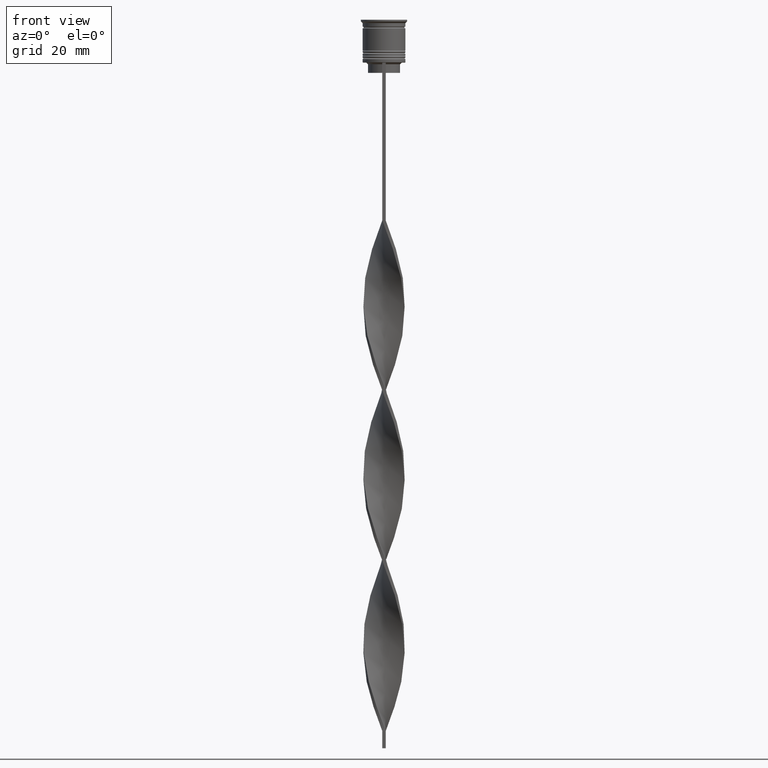
[diagram: clean part render]
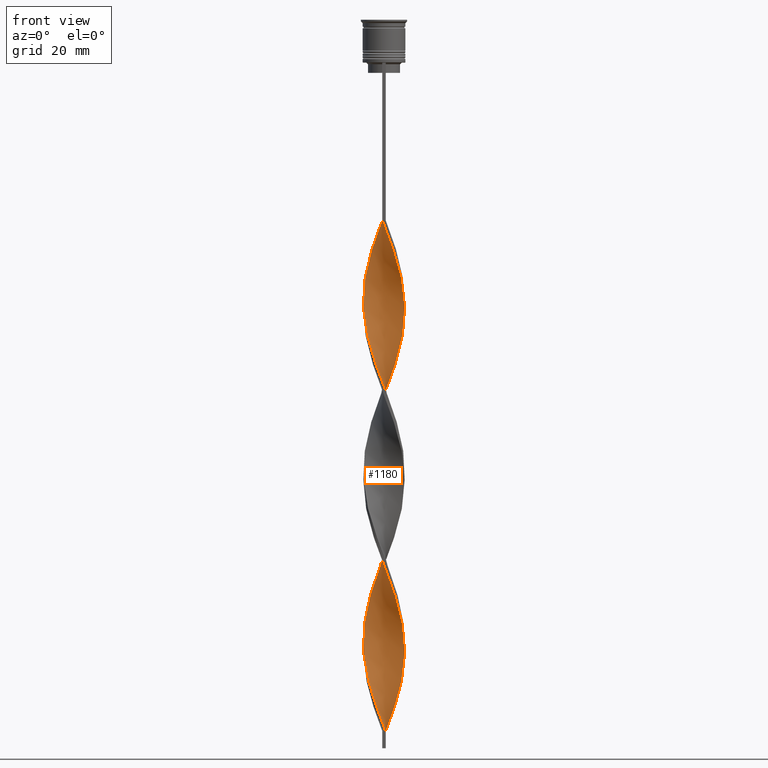
[diagram: same view with one face highlighted and labeled with its STEP entity id]
A machine part, front view. The second image highlights one B-rep face of the part: STEP entity #1180.
In plain terms, the highlighted face is a freeform B-spline surface patch.
Its self-contained STEP definition (entity closure, byte-faithful):
#4 = CARTESIAN_POINT ( 'NONE',  ( 5.928270878038556901, 1.051477244927326415, -134.4607843137254974 ) ) ;
#14 = CARTESIAN_POINT ( 'NONE',  ( -5.437407565418680200, -2.644969083640991592, -89.17647058823528994 ) ) ;
#18 = CARTESIAN_POINT ( 'NONE',  ( -3.583701545128944232, -4.838086732939006041, -149.0686274509803866 ) ) ;
#23 = CARTESIAN_POINT ( 'NONE',  ( -2.236388528178717472, -5.617813528137046930, -200.1960784313725981 ) ) ;
#40 = CARTESIAN_POINT ( 'NONE',  ( 5.437407565418680200, -2.644969083640992480, -77.49019607843136725 ) ) ;
#47 = CARTESIAN_POINT ( 'NONE',  ( -5.387501025401044252, 2.745194926993649087, -173.9019607843137294 ) ) ;
#55 = CARTESIAN_POINT ( 'NONE',  ( -0.05598187745217925865, 6.046331823121014359, -109.6274509803921546 ) ) ;
#61 = CARTESIAN_POINT ( 'NONE',  ( -3.672669403269014143, 4.770901325147232974, -119.8529411764705799 ) ) ;
#66 = CARTESIAN_POINT ( 'NONE',  ( -1.701213882420740120, -5.775454209519710780, -201.6568627450980387 ) ) ;
#72 = CARTESIAN_POINT ( 'NONE',  ( 0.5000000000000005551, 6.000000000000000000, -108.1666666666666572 ) ) ;
#75 = CARTESIAN_POINT ( 'NONE',  ( -5.089420681871065000, 3.216799204635419240, -73.10784313725488914 ) ) ;
#82 = CARTESIAN_POINT ( 'NONE',  ( -5.928270878038556013, -1.051477244927328192, -184.1274509803921546 ) ) ;
#86 = CARTESIAN_POINT ( 'NONE',  ( -1.701213882420741008, 5.775454209519710780, -114.0098039215686185 ) ) ;
#92 = CARTESIAN_POINT ( 'NONE',  ( 1.593983656741372767, 5.805963839195126042, -204.5784313725490335 ) ) ;
#97 = CARTESIAN_POINT ( 'NONE',  ( -5.830837162583067723, -1.600812440396821801, -185.5882352941176237 ) ) ;
#105 = CARTESIAN_POINT ( 'NONE',  ( 4.791340338341087524, 3.688403482277190282, -95.01960784313725128 ) ) ;
#109 = CARTESIAN_POINT ( 'NONE',  ( 5.148110570242104167, 3.122011780336761966, -140.3039215686274588 ) ) ;
#128 = CARTESIAN_POINT ( 'NONE',  ( 6.015373881509670895, -0.6136281867224248066, -130.0784313725490335 ) ) ;
#135 = CARTESIAN_POINT ( 'NONE',  ( 0.5000000000000005551, 6.000000000000000000, -207.5000000000000000 ) ) ;
#141 = CARTESIAN_POINT ( 'NONE',  ( 4.858813575065529911, -3.599054477032529675, -173.9019607843137294 ) ) ;
#145 = CARTESIAN_POINT ( 'NONE',  ( -5.907785354072955464, 1.161065118846087207, -178.2843137254901933 ) ) ;
#156 = CARTESIAN_POINT ( 'NONE',  ( 4.411678320489673233, 4.097205681500676100, -195.8137254901960773 ) ) ;
#163 = CARTESIAN_POINT ( 'NONE',  ( -5.437407565418680200, -2.644969083640991592, -188.5098039215686185 ) ) ;
#175 = CARTESIAN_POINT ( 'NONE',  ( -5.830837162583068611, 1.600812440396819580, -130.0784313725490335 ) ) ;
#178 = CARTESIAN_POINT ( 'NONE',  ( -5.634122364000872629, -2.122890762018907029, -187.0490196078431211 ) ) ;
#189 = CARTESIAN_POINT ( 'NONE',  ( 0.5000000000000005551, 6.000000000000000000, -207.5000000000000000 ) ) ;
#192 = CARTESIAN_POINT ( 'NONE',  ( -1.055981877452178086, 5.953668176878986529, -59.96078431372549744 ) ) ;
#205 = CARTESIAN_POINT ( 'NONE',  ( 2.733484409399328019, -5.364518895816363653, -67.26470588235292780 ) ) ;
#209 = CARTESIAN_POINT ( 'NONE',  ( -4.411678320489672345, 4.097205681500676988, -70.18627450980390847 ) ) ;
#233 = CARTESIAN_POINT ( 'NONE',  ( 0.05598187745217871047, 6.046331823121016136, -156.3725490196078454 ) ) ;
#253 = CARTESIAN_POINT ( 'NONE',  ( -0.6110105570574716483, -5.989713357011694939, -105.2450980392156765 ) ) ;
#266 = CARTESIAN_POINT ( 'NONE',  ( -5.089420681871066776, -3.216799204635417464, -143.2254901960784537 ) ) ;
#270 = CARTESIAN_POINT ( 'NONE',  ( -3.135386787619624638, 5.170165585153851495, -65.80392156862747299 ) ) ;
#288 = CARTESIAN_POINT ( 'NONE',  ( 6.015373881509670895, 0.6136281867224271380, -86.25490196078432348 ) ) ;
#294 = CARTESIAN_POINT ( 'NONE',  ( -2.633686111825095377, 5.414212543332558525, -64.34313725490196134 ) ) ;
#308 = CARTESIAN_POINT ( 'NONE',  ( 6.025704593494046968, -0.5021420494578373583, -83.33333333333332860 ) ) ;
#312 = CARTESIAN_POINT ( 'NONE',  ( -6.025704593494046968, -0.5021420494578366922, -182.6666666666666572 ) ) ;
#321 = CARTESIAN_POINT ( 'NONE',  ( -3.672669403269015032, -4.770901325147232086, -96.48039215686274872 ) ) ;
#324 = CARTESIAN_POINT ( 'NONE',  ( -4.411678320489671457, -4.097205681500676988, -146.1470588235294201 ) ) ;
#330 = CARTESIAN_POINT ( 'NONE',  ( -5.089420681871065000, 3.216799204635419240, -172.4411764705882035 ) ) ;
#337 = CARTESIAN_POINT ( 'NONE',  ( 5.907785354072955464, 1.161065118846088096, -87.71568627450979250 ) ) ;
#344 = CARTESIAN_POINT ( 'NONE',  ( 4.411678320489673233, 4.097205681500676100, -96.48039215686274872 ) ) ;
#381 = CARTESIAN_POINT ( 'NONE',  ( -5.928270878038556013, -1.051477244927328192, -84.79411764705882604 ) ) ;
#383 = CARTESIAN_POINT ( 'NONE',  ( 2.131985436030567893, 5.658259501511266443, -203.1176470588235361 ) ) ;
#391 = CARTESIAN_POINT ( 'NONE',  ( 5.634122364000872629, -2.122890762018906141, -78.95098039215686470 ) ) ;
#393 = CARTESIAN_POINT ( 'NONE',  ( 0.4999999999999990563, -6.000000000000000000, -108.1666666666666572 ) ) ;
#412 = CARTESIAN_POINT ( 'NONE',  ( -3.230580290619938566, 5.111224263495681264, -118.3921568627451109 ) ) ;
#416 = CARTESIAN_POINT ( 'NONE',  ( -2.633686111825095377, 5.414212543332558525, -163.6764705882352757 ) ) ;
#419 = CARTESIAN_POINT ( 'NONE',  ( 4.032016302638260719, 4.506007880724164139, -197.2745098039215463 ) ) ;
#427 = CARTESIAN_POINT ( 'NONE',  ( 4.114758515918087944, -4.430578386798787349, -170.9803921568627629 ) ) ;
#430 = CARTESIAN_POINT ( 'NONE',  ( -4.486786045491809816, -4.014816431915657624, -192.8921568627450824 ) ) ;
#443 = CARTESIAN_POINT ( 'NONE',  ( 5.437407565418680200, -2.644969083640992480, -176.8235294117647243 ) ) ;
#446 = CARTESIAN_POINT ( 'NONE',  ( -4.791340338341087524, 3.688403482277190282, -170.9803921568627629 ) ) ;
#461 = CARTESIAN_POINT ( 'NONE',  ( 3.583701545128941568, 4.838086732939006929, -198.7352941176470722 ) ) ;
#468 = CARTESIAN_POINT ( 'NONE',  ( 3.583701545128942012, -4.838086732939006041, -116.9313725490195992 ) ) ;
#480 = CARTESIAN_POINT ( 'NONE',  ( -4.411678320489671457, -4.097205681500676988, -146.1470588235294201 ) ) ;
#487 = CARTESIAN_POINT ( 'NONE',  ( 4.791340338341086635, -3.688403482277189394, -121.3137254901960773 ) ) ;
#496 = CARTESIAN_POINT ( 'NONE',  ( 1.701213882420740120, -5.775454209519710780, -64.34313725490196134 ) ) ;
#500 = CARTESIAN_POINT ( 'NONE',  ( 3.230580290619939898, -5.111224263495680376, -168.0588235294117680 ) ) ;
#517 = CARTESIAN_POINT ( 'NONE',  ( 0.6110105570574696499, 5.989713357011694939, -154.9117647058823479 ) ) ;
#538 = CARTESIAN_POINT ( 'NONE',  ( 5.593848926018644363, -2.226848488981697294, -125.6960784313725412 ) ) ;
#552 = CARTESIAN_POINT ( 'NONE',  ( -4.114758515918087944, -4.430578386798787349, -95.01960784313725128 ) ) ;
#563 = CARTESIAN_POINT ( 'NONE',  ( -0.6110105570574700939, 5.989713357011694939, -111.0882352941176379 ) ) ;
#567 = CARTESIAN_POINT ( 'NONE',  ( 6.025704593494046968, 0.5021420494578359150, -133.0000000000000000 ) ) ;
#584 = CARTESIAN_POINT ( 'NONE',  ( -2.733484409399328463, 5.364518895816362765, -116.9313725490195992 ) ) ;
#590 = CARTESIAN_POINT ( 'NONE',  ( -0.4999999999999997780, -6.000000000000000000, -58.50000000000000000 ) ) ;
#591 = CARTESIAN_POINT ( 'NONE',  ( 1.701213882420740564, 5.775454209519710780, -151.9901960784313530 ) ) ;
#601 = CARTESIAN_POINT ( 'NONE',  ( 2.131985436030567005, -5.658259501511266443, -112.5490196078431495 ) ) ;
#606 = CARTESIAN_POINT ( 'NONE',  ( 1.055981877452177864, 5.953668176878987417, -106.7058823529411882 ) ) ;
#624 = CARTESIAN_POINT ( 'NONE',  ( -1.055981877452178530, -5.953668176878987417, -156.3725490196078454 ) ) ;
#626 = ORIENTED_EDGE ( 'NONE', *, *, #1452, .F. ) ;
#629 = CARTESIAN_POINT ( 'NONE',  ( 0.4999999999999990563, -6.000000000000000000, -207.5000000000000000 ) ) ;
#636 = CARTESIAN_POINT ( 'NONE',  ( 2.633686111825095377, 5.414212543332558525, -102.3235294117646959 ) ) ;
#643 = CARTESIAN_POINT ( 'NONE',  ( -5.148110570242105943, 3.122011780336759745, -125.6960784313725412 ) ) ;
#653 = CARTESIAN_POINT ( 'NONE',  ( -0.6110105570574716483, -5.989713357011694939, -204.5784313725490335 ) ) ;
#660 = FACE_OUTER_BOUND ( 'NONE', #3025, .T. ) ;
#665 = CARTESIAN_POINT ( 'NONE',  ( 5.928270878038556013, -1.051477244927329080, -181.2058823529411598 ) ) ;
#682 = CARTESIAN_POINT ( 'NONE',  ( -2.633686111825095377, 5.414212543332558525, -163.6764705882352757 ) ) ;
#687 = CARTESIAN_POINT ( 'NONE',  ( 4.032016302638261607, 4.506007880724164139, -97.94117647058824616 ) ) ;
#693 = CARTESIAN_POINT ( 'NONE',  ( 3.672669403269013255, 4.770901325147232974, -146.1470588235294201 ) ) ;
#695 = CARTESIAN_POINT ( 'NONE',  ( 5.593848926018643475, 2.226848488981698626, -189.9705882352941160 ) ) ;
#702 = CARTESIAN_POINT ( 'NONE',  ( 0.4999999999999990563, -6.000000000000000000, -207.5000000000000000 ) ) ;
#709 = CARTESIAN_POINT ( 'NONE',  ( 0.05598187745217882844, -6.046331823121014359, -159.2941176470588118 ) ) ;
#713 = CARTESIAN_POINT ( 'NONE',  ( -3.230580290619939898, -5.111224263495680376, -197.2745098039215463 ) ) ;
#722 = CARTESIAN_POINT ( 'NONE',  ( -5.437407565418680200, 2.644969083640992036, -127.1568627450980102 ) ) ;
#725 = CARTESIAN_POINT ( 'NONE',  ( 2.733484409399330239, 5.364518895816361876, -149.0686274509803866 ) ) ;
#739 = CARTESIAN_POINT ( 'NONE',  ( -5.634122364000872629, 2.122890762018908362, -128.6176470588235361 ) ) ;
#742 = CARTESIAN_POINT ( 'NONE',  ( 5.593848926018644363, -2.226848488981697294, -125.6960784313725412 ) ) ;
#756 = CARTESIAN_POINT ( 'NONE',  ( -5.907785354072955464, -1.161065118846087207, -137.3823529411764639 ) ) ;
#764 = CARTESIAN_POINT ( 'NONE',  ( -0.6110105570574716483, -5.989713357011694939, -204.5784313725490335 ) ) ;
#778 = CARTESIAN_POINT ( 'NONE',  ( -0.4999999999999997780, 6.000000000000000000, -58.50000000000000000 ) ) ;
#796 = CARTESIAN_POINT ( 'NONE',  ( -1.166039236662764988, -5.933094890902376406, -103.7843137254901933 ) ) ;
#813 = CARTESIAN_POINT ( 'NONE',  ( -5.437407565418680200, -2.644969083640991592, -89.17647058823527573 ) ) ;
#827 = VECTOR ( 'NONE', #1691, 1000.000000000000000 ) ;
#835 = CARTESIAN_POINT ( 'NONE',  ( 4.858813575065529911, 3.599054477032529675, -141.7647058823529562 ) ) ;
#847 = CARTESIAN_POINT ( 'NONE',  ( 1.166039236662763656, -5.933094890902377294, -162.2156862745098351 ) ) ;
#849 = EDGE_CURVE ( 'NONE', #2371, #3119, #1384, .T. ) ;
#852 = CARTESIAN_POINT ( 'NONE',  ( 4.032016302638259830, -4.506007880724165027, -118.3921568627451109 ) ) ;
#864 = CARTESIAN_POINT ( 'NONE',  ( -4.032016302638261607, -4.506007880724164139, -147.6078431372548891 ) ) ;
#870 = CARTESIAN_POINT ( 'NONE',  ( 3.672669403269013255, 4.770901325147232974, -146.1470588235294201 ) ) ;
#882 = CARTESIAN_POINT ( 'NONE',  ( -4.032016302638260719, 4.506007880724164139, -68.72549019607842524 ) ) ;
#891 = CARTESIAN_POINT ( 'NONE',  ( -3.135386787619623750, -5.170165585153852383, -150.5294117647058840 ) ) ;
#897 = CARTESIAN_POINT ( 'NONE',  ( -5.437407565418680200, -2.644969083640991592, -188.5098039215686185 ) ) ;
#903 = CARTESIAN_POINT ( 'NONE',  ( 3.583701545128941568, 4.838086732939006929, -99.40196078431372939 ) ) ;
#906 = CARTESIAN_POINT ( 'NONE',  ( 0.4999999999999990563, -6.000000000000000000, -207.5000000000000000 ) ) ;
#911 = CARTESIAN_POINT ( 'NONE',  ( 5.800196826636242697, 1.708502050969748609, -89.17647058823528994 ) ) ;
#915 = CARTESIAN_POINT ( 'NONE',  ( -5.800196826636242697, 1.708502050969749497, -176.8235294117647243 ) ) ;
#921 = CARTESIAN_POINT ( 'NONE',  ( 3.230580290619939898, -5.111224263495680376, -68.72549019607842524 ) ) ;
#927 = CARTESIAN_POINT ( 'NONE',  ( 2.131985436030567893, 5.658259501511266443, -103.7843137254901791 ) ) ;
#931 = CARTESIAN_POINT ( 'NONE',  ( -4.411678320489672345, 4.097205681500676988, -169.5196078431372371 ) ) ;
#936 = CARTESIAN_POINT ( 'NONE',  ( 6.015373881509670007, 0.6136281867224272490, -86.25490196078432348 ) ) ;
#938 = CARTESIAN_POINT ( 'NONE',  ( -3.135386787619624638, 5.170165585153851495, -65.80392156862745878 ) ) ;
#952 = CARTESIAN_POINT ( 'NONE',  ( -4.032016302638261607, 4.506007880724164139, -168.0588235294117680 ) ) ;
#960 = CARTESIAN_POINT ( 'NONE',  ( -2.236388528178717028, -5.617813528137046042, -100.8627450980392126 ) ) ;
#977 = CARTESIAN_POINT ( 'NONE',  ( -5.089420681871065000, 3.216799204635419240, -172.4411764705882035 ) ) ;
#989 = CARTESIAN_POINT ( 'NONE',  ( -5.148110570242105943, 3.122011780336759745, -125.6960784313725412 ) ) ;
#993 = CARTESIAN_POINT ( 'NONE',  ( -2.131985436030567005, 5.658259501511266443, -162.2156862745098351 ) ) ;
#1011 = CARTESIAN_POINT ( 'NONE',  ( 0.6110105570574714262, -5.989713357011694939, -160.7549019607842808 ) ) ;
#1014 = CARTESIAN_POINT ( 'NONE',  ( 0.4999999999999990563, -6.000000000000000000, -207.5000000000000000 ) ) ;
#1016 = LINE ( 'NONE', #3434, #827 ) ;
#1017 = CARTESIAN_POINT ( 'NONE',  ( 5.800196826636242697, 1.708502050969748609, -188.5098039215686185 ) ) ;
#1025 = CARTESIAN_POINT ( 'NONE',  ( -2.131985436030568781, -5.658259501511264666, -153.4509803921568789 ) ) ;
#1028 = CARTESIAN_POINT ( 'NONE',  ( -1.055981877452178308, 5.953668176878985641, -159.2941176470588118 ) ) ;
#1040 = CARTESIAN_POINT ( 'NONE',  ( 5.148110570242105055, -3.122011780336760634, -175.3627450980391984 ) ) ;
#1044 = CARTESIAN_POINT ( 'NONE',  ( 1.701213882420740564, 5.775454209519710780, -151.9901960784313530 ) ) ;
#1053 = CARTESIAN_POINT ( 'NONE',  ( 0.6110105570574714262, -5.989713357011694939, -61.42156862745097357 ) ) ;
#1061 = CARTESIAN_POINT ( 'NONE',  ( 1.166039236662763656, -5.933094890902376406, -162.2156862745098351 ) ) ;
#1072 = VERTEX_POINT ( 'NONE', #590 ) ;
#1084 = CARTESIAN_POINT ( 'NONE',  ( -5.387501025401044252, 2.745194926993649087, -74.56862745098038658 ) ) ;
#1100 = CARTESIAN_POINT ( 'NONE',  ( -5.593848926018643475, 2.226848488981699070, -76.02941176470586981 ) ) ;
#1120 = CARTESIAN_POINT ( 'NONE',  ( -5.634122364000872629, -2.122890762018907029, -87.71568627450979250 ) ) ;
#1140 = CARTESIAN_POINT ( 'NONE',  ( 5.928270878038556013, -1.051477244927329080, -81.87254901960783116 ) ) ;
#1144 = CARTESIAN_POINT ( 'NONE',  ( -4.486786045491809816, -4.014816431915657624, -93.55882352941176805 ) ) ;
#1156 = CARTESIAN_POINT ( 'NONE',  ( 2.633686111825095377, 5.414212543332558525, -102.3235294117646959 ) ) ;
#1161 = CARTESIAN_POINT ( 'NONE',  ( 2.733484409399330239, 5.364518895816361876, -149.0686274509803866 ) ) ;
#1171 = CARTESIAN_POINT ( 'NONE',  ( -6.015373881509670007, 0.6136281867224266939, -80.41176470588234793 ) ) ;
#1174 = CARTESIAN_POINT ( 'NONE',  ( 0.5000000000000005551, 6.000000000000000000, -108.1666666666666572 ) ) ;
#1180 = ADVANCED_FACE ( 'NONE', ( #660 ), #2191, .T. ) ;
#1192 = CARTESIAN_POINT ( 'NONE',  ( -5.593848926018643475, 2.226848488981699070, -76.02941176470586981 ) ) ;
#1197 = CARTESIAN_POINT ( 'NONE',  ( 3.583701545128941568, 4.838086732939006929, -99.40196078431372939 ) ) ;
#1203 = CARTESIAN_POINT ( 'NONE',  ( -4.486786045491809816, -4.014816431915657624, -192.8921568627450824 ) ) ;
#1209 = CARTESIAN_POINT ( 'NONE',  ( -2.236388528178716140, 5.617813528137046930, -115.4705882352940876 ) ) ;
#1212 = CARTESIAN_POINT ( 'NONE',  ( -5.800196826636242697, 1.708502050969749497, -77.49019607843136725 ) ) ;
#1215 = CARTESIAN_POINT ( 'NONE',  ( 4.858813575065529911, -3.599054477032529675, -74.56862745098038658 ) ) ;
#1224 = ORIENTED_EDGE ( 'NONE', *, *, #849, .T. ) ;
#1226 = CARTESIAN_POINT ( 'NONE',  ( -1.166039236662763656, 5.933094890902376406, -112.5490196078431495 ) ) ;
#1228 = CARTESIAN_POINT ( 'NONE',  ( -6.020539237501858487, 0.05574306863229507719, -81.87254901960783116 ) ) ;
#1231 = CARTESIAN_POINT ( 'NONE',  ( 2.733484409399328019, -5.364518895816363653, -166.5980392156862706 ) ) ;
#1236 = CARTESIAN_POINT ( 'NONE',  ( -0.4999999999999997780, 6.000000000000000888, -58.50000000000000000 ) ) ;
#1243 = CARTESIAN_POINT ( 'NONE',  ( -4.486786045491809816, -4.014816431915657624, -93.55882352941176805 ) ) ;
#1258 = CARTESIAN_POINT ( 'NONE',  ( -4.858813575065529911, -3.599054477032530563, -191.4313725490196134 ) ) ;
#1266 = CARTESIAN_POINT ( 'NONE',  ( 4.114758515918086168, 4.430578386798788237, -144.6862745098039227 ) ) ;
#1268 = CARTESIAN_POINT ( 'NONE',  ( 5.830837162583067723, -1.600812440396821357, -179.7450980392157476 ) ) ;
#1280 = CARTESIAN_POINT ( 'NONE',  ( -3.583701545128944232, -4.838086732939006041, -149.0686274509803866 ) ) ;
#1283 = CARTESIAN_POINT ( 'NONE',  ( -4.032016302638260719, 4.506007880724164139, -168.0588235294117680 ) ) ;
#1286 = CARTESIAN_POINT ( 'NONE',  ( 0.5000000000000005551, 6.000000000000000000, -207.5000000000000000 ) ) ;
#1298 = CARTESIAN_POINT ( 'NONE',  ( 6.015373881509670007, 0.6136281867224272490, -185.5882352941176237 ) ) ;
#1302 = CARTESIAN_POINT ( 'NONE',  ( -1.593983656741372767, 5.805963839195126042, -160.7549019607842808 ) ) ;
#1305 = CARTESIAN_POINT ( 'NONE',  ( 4.411678320489673233, 4.097205681500676100, -195.8137254901960773 ) ) ;
#1318 = CARTESIAN_POINT ( 'NONE',  ( -1.593983656741371213, -5.805963839195126042, -154.9117647058823479 ) ) ;
#1322 = CARTESIAN_POINT ( 'NONE',  ( -5.148110570242105055, -3.122011780336760189, -189.9705882352941160 ) ) ;
#1335 = CARTESIAN_POINT ( 'NONE',  ( 2.131985436030567893, 5.658259501511265555, -203.1176470588235361 ) ) ;
#1338 = CARTESIAN_POINT ( 'NONE',  ( 4.411678320489672345, -4.097205681500676988, -119.8529411764705799 ) ) ;
#1352 = CARTESIAN_POINT ( 'NONE',  ( 4.486786045491808927, -4.014816431915657624, -172.4411764705882035 ) ) ;
#1367 = CARTESIAN_POINT ( 'NONE',  ( 3.230580290619939898, -5.111224263495680376, -68.72549019607842524 ) ) ;
#1373 = CARTESIAN_POINT ( 'NONE',  ( -5.928270878038556013, -1.051477244927328192, -84.79411764705882604 ) ) ;
#1384 =( BOUNDED_CURVE ( )  B_SPLINE_CURVE ( 2, ( #2654, #3585, #2680, #2075, #1846, #938, #2092, #882, #2112, #1829, #75, #2423, #1192, #1212, #2390, #1171, #1228, #3570, #381, #2404, #1540, #14, #2370, #2713, #1243, #3553, #321, #3606, #3266, #960, #1791, #2131, #2058, #3031, #393, #3248, #1555, #601, #1775, #2953, #468, #2189, #1338, #487, #3336, #1898, #742, #3374, #1936, #128, #3640, #2733, #3356, #2754, #2511, #1914, #109, #3673, #3692, #1266, #693, #2168, #725, #1614, #1044, #2441, #3082, #3120, #2203, #1028, #1302, #993, #416, #3097, #1640, #1283, #3624, #446, #977, #2475, #2771, #2149, #145, #1862, #2456, #2786, #1885, #2811, #178, #163, #1322, #1579, #430, #2496, #3067, #713, #1597, #2220, #3658, #3410, #764, #3392, #1014 ),
 .UNSPECIFIED., .F., .F. ) 
 B_SPLINE_CURVE_WITH_KNOTS ( ( 3, 2, 2, 2, 2, 2, 2, 2, 2, 2, 2, 2, 2, 2, 2, 2, 2, 2, 2, 2, 2, 2, 2, 2, 2, 2, 2, 2, 2, 2, 2, 2, 2, 2, 2, 2, 2, 2, 2, 2, 2, 2, 2, 2, 2, 2, 2, 2, 2, 2, 2, 3 ),
 ( 0.000000000000000000, 0.01470588235294117453, 0.02941176470588234906, 0.04411764705882353227, 0.05882352941176469813, 0.07352941176470588480, 0.08823529411764706454, 0.1029411764705882443, 0.1176470588235293963, 0.1323529411764705899, 0.1470588235294117696, 0.1617647058823529493, 0.1764705882352941291, 0.1911764705882352811, 0.2058823529411764885, 0.2205882352941176405, 0.2352941176470587925, 0.2500000000000000000, 0.2647058823529411797, 0.2794117647058823595, 0.2941176470588235392, 0.3088235294117647189, 0.3235294117647058987, 0.3382352941176470229, 0.3529411764705882582, 0.3676470588235294379, 0.3823529411764705621, 0.3970588235294117418, 0.4117647058823529771, 0.4264705882352941013, 0.4411764705882352811, 0.4558823529411764608, 0.4705882352941175850, 0.4852941176470588203, 0.5000000000000000000, 0.5147058823529411242, 0.5294117647058823595, 0.5441176470588234837, 0.5588235294117647189, 0.5735294117647058432, 0.5882352941176470784, 0.6029411764705882026, 0.6176470588235294379, 0.6323529411764705621, 0.6470588235294117974, 0.6617647058823529216, 0.6764705882352940458, 0.6911764705882351700, 0.7058823529411765163, 0.7205882352941176405, 0.7352941176470588758, 0.7500000000000000000 ),
 .UNSPECIFIED. ) 
 CURVE ( )  GEOMETRIC_REPRESENTATION_ITEM ( )  RATIONAL_B_SPLINE_CURVE ( ( 1.000000000000000000, 0.9957341762950344677, 1.000000000000000000, 0.9957341762950344677, 1.000000000000000000, 0.9957341762950344677, 1.000000000000000000, 0.9957341762950344677, 1.000000000000000000, 0.9957341762950344677, 1.000000000000000000, 0.9957341762950344677, 1.000000000000000000, 0.9957341762950344677, 1.000000000000000000, 0.9957341762950344677, 1.000000000000000000, 0.9957341762950344677, 1.000000000000000000, 0.9957341762950344677, 1.000000000000000000, 0.9957341762950344677, 1.000000000000000000, 0.9957341762950344677, 1.000000000000000000, 0.9957341762950344677, 1.000000000000000000, 0.9957341762950344677, 1.000000000000000000, 0.9957341762950344677, 1.000000000000000000, 0.9957341762950344677, 1.000000000000000000, 0.9957341762950344677, 1.000000000000000000, 0.9957341762950344677, 1.000000000000000000, 0.9957341762950344677, 1.000000000000000000, 0.9957341762950344677, 1.000000000000000000, 0.9957341762950344677, 1.000000000000000000, 0.9957341762950344677, 1.000000000000000000, 0.9957341762950344677, 1.000000000000000000, 0.9957341762950344677, 1.000000000000000000, 0.9957341762950344677, 1.000000000000000000, 0.9957341762950344677, 1.000000000000000000, 0.9957341762950344677, 1.000000000000000000, 0.9957341762950344677, 1.000000000000000000, 0.9957341762950344677, 1.000000000000000000, 0.9957341762950344677, 1.000000000000000000, 0.9957341762950344677, 1.000000000000000000, 0.9957341762950344677, 1.000000000000000000, 0.9957341762950344677, 1.000000000000000000, 0.9957341762950344677, 1.000000000000000000, 0.9957341762950344677, 1.000000000000000000, 0.9957341762950344677, 1.000000000000000000, 0.9957341762950344677, 1.000000000000000000, 0.9957341762950344677, 1.000000000000000000, 0.9957341762950344677, 1.000000000000000000, 0.9957341762950344677, 1.000000000000000000, 0.9957341762950344677, 1.000000000000000000, 0.9957341762950344677, 1.000000000000000000, 0.9957341762950344677, 1.000000000000000000, 0.9957341762950344677, 1.000000000000000000, 0.9957341762950344677, 1.000000000000000000, 0.9957341762950344677, 1.000000000000000000, 0.9957341762950344677, 1.000000000000000000, 0.9957341762950344677, 1.000000000000000000, 0.9957341762950344677, 1.000000000000000000, 0.9957341762950344677, 1.000000000000000000, 0.9957341762950344677, 1.000000000000000000 ) ) 
 REPRESENTATION_ITEM ( '' )  );
#1395 = CARTESIAN_POINT ( 'NONE',  ( -3.583701545128941568, 4.838086732939006929, -67.26470588235292780 ) ) ;
#1410 = CARTESIAN_POINT ( 'NONE',  ( -4.791340338341087524, 3.688403482277190282, -71.64705882352943433 ) ) ;
#1422 = CARTESIAN_POINT ( 'NONE',  ( -4.791340338341085747, -3.688403482277191170, -144.6862745098039227 ) ) ;
#1429 = CARTESIAN_POINT ( 'NONE',  ( -6.015373881509669118, 0.6136281867224266939, -80.41176470588234793 ) ) ;
#1448 = CARTESIAN_POINT ( 'NONE',  ( -0.05598187745217925865, 6.046331823121015248, -109.6274509803921404 ) ) ;
#1452 = EDGE_CURVE ( 'NONE', #1457, #3119, #1692, .T. ) ;
#1453 = CARTESIAN_POINT ( 'NONE',  ( 0.4999999999999990563, -6.000000000000000000, -108.1666666666666572 ) ) ;
#1457 = VERTEX_POINT ( 'NONE', #189 ) ;
#1466 = CARTESIAN_POINT ( 'NONE',  ( 4.114758515918087944, -4.430578386798787349, -71.64705882352942012 ) ) ;
#1470 = CARTESIAN_POINT ( 'NONE',  ( -5.634122364000872629, -2.122890762018907029, -187.0490196078431211 ) ) ;
#1484 = CARTESIAN_POINT ( 'NONE',  ( -0.4999999999999997780, -6.000000000000000000, -157.8333333333333144 ) ) ;
#1489 = CARTESIAN_POINT ( 'NONE',  ( -5.148110570242105055, -3.122011780336760189, -189.9705882352941160 ) ) ;
#1497 = CARTESIAN_POINT ( 'NONE',  ( 4.411678320489673233, 4.097205681500676100, -96.48039215686274872 ) ) ;
#1507 = CARTESIAN_POINT ( 'NONE',  ( 5.089420681871065888, 3.216799204635418352, -93.55882352941176805 ) ) ;
#1519 = CARTESIAN_POINT ( 'NONE',  ( 1.166039236662763656, -5.933094890902376406, -62.88235294117647811 ) ) ;
#1536 = CARTESIAN_POINT ( 'NONE',  ( 3.672669403269014143, -4.770901325147232974, -70.18627450980390847 ) ) ;
#1540 = CARTESIAN_POINT ( 'NONE',  ( -5.634122364000872629, -2.122890762018907029, -87.71568627450979250 ) ) ;
#1542 = CARTESIAN_POINT ( 'NONE',  ( 5.437407565418680200, -2.644969083640992480, -176.8235294117647243 ) ) ;
#1546 = CARTESIAN_POINT ( 'NONE',  ( -2.131985436030567005, 5.658259501511265555, -162.2156862745098351 ) ) ;
#1555 = CARTESIAN_POINT ( 'NONE',  ( 1.593983656741371657, -5.805963839195126042, -111.0882352941176379 ) ) ;
#1560 = CARTESIAN_POINT ( 'NONE',  ( 4.858813575065529911, -3.599054477032529675, -173.9019607843137294 ) ) ;
#1576 = CARTESIAN_POINT ( 'NONE',  ( -3.672669403269014143, 4.770901325147232974, -119.8529411764705799 ) ) ;
#1579 = CARTESIAN_POINT ( 'NONE',  ( -4.858813575065529911, -3.599054477032530563, -191.4313725490196134 ) ) ;
#1582 = CARTESIAN_POINT ( 'NONE',  ( 5.148110570242105055, -3.122011780336760634, -175.3627450980391984 ) ) ;
#1594 = CARTESIAN_POINT ( 'NONE',  ( 5.907785354072955464, 1.161065118846088096, -187.0490196078431211 ) ) ;
#1597 = CARTESIAN_POINT ( 'NONE',  ( -2.733484409399328019, -5.364518895816363653, -198.7352941176470722 ) ) ;
#1609 = CARTESIAN_POINT ( 'NONE',  ( -4.486786045491808927, 4.014816431915658512, -122.7745098039215605 ) ) ;
#1614 = CARTESIAN_POINT ( 'NONE',  ( 2.236388528178715251, 5.617813528137046042, -150.5294117647058840 ) ) ;
#1635 = CARTESIAN_POINT ( 'NONE',  ( 6.025704593494046968, -0.5021420494578373583, -182.6666666666666572 ) ) ;
#1640 = CARTESIAN_POINT ( 'NONE',  ( -3.583701545128941568, 4.838086732939006929, -166.5980392156862706 ) ) ;
#1650 = CARTESIAN_POINT ( 'NONE',  ( 3.135386787619625526, 5.170165585153850607, -200.1960784313725981 ) ) ;
#1666 = CARTESIAN_POINT ( 'NONE',  ( -6.015373881509670007, -0.6136281867224278042, -135.9215686274509665 ) ) ;
#1682 = CARTESIAN_POINT ( 'NONE',  ( -1.701213882420740120, -5.775454209519710780, -102.3235294117646959 ) ) ;
#1691 = DIRECTION ( 'NONE',  ( 0.000000000000000000, 1.000000000000000000, 0.000000000000000000 ) ) ;
#1692 = B_SPLINE_CURVE_WITH_KNOTS ( 'NONE', 3,
 ( #135, #3630, #2488, #702 ),
 .UNSPECIFIED., .F., .F.,
 ( 4, 4 ),
 ( 0.000000000000000000, 1.000000000000000000 ),
 .UNSPECIFIED. ) ;
#1703 = CARTESIAN_POINT ( 'NONE',  ( -5.089420681871065000, 3.216799204635419240, -73.10784313725488914 ) ) ;
#1721 = CARTESIAN_POINT ( 'NONE',  ( 1.593983656741371657, -5.805963839195126042, -111.0882352941176379 ) ) ;
#1732 = CARTESIAN_POINT ( 'NONE',  ( -4.486786045491808927, 4.014816431915658512, -122.7745098039215605 ) ) ;
#1737 = CARTESIAN_POINT ( 'NONE',  ( 5.437407565418680200, 2.644969083640990259, -138.8431372549019045 ) ) ;
#1758 = CARTESIAN_POINT ( 'NONE',  ( -5.830837162583068611, 1.600812440396819580, -130.0784313725490335 ) ) ;
#1763 = CARTESIAN_POINT ( 'NONE',  ( -4.032016302638261607, 4.506007880724164139, -68.72549019607842524 ) ) ;
#1775 = CARTESIAN_POINT ( 'NONE',  ( 2.633686111825096265, -5.414212543332558525, -114.0098039215686185 ) ) ;
#1778 = CARTESIAN_POINT ( 'NONE',  ( -5.928270878038556013, 1.051477244927328636, -131.5392156862745310 ) ) ;
#1782 = CARTESIAN_POINT ( 'NONE',  ( -3.672669403269015032, -4.770901325147232086, -195.8137254901960773 ) ) ;
#1791 = CARTESIAN_POINT ( 'NONE',  ( -1.701213882420740120, -5.775454209519710780, -102.3235294117646959 ) ) ;
#1795 = CARTESIAN_POINT ( 'NONE',  ( 0.6110105570574714262, -5.989713357011694939, -160.7549019607842808 ) ) ;
#1808 = CARTESIAN_POINT ( 'NONE',  ( 1.701213882420740120, -5.775454209519710780, -64.34313725490196134 ) ) ;
#1816 = CARTESIAN_POINT ( 'NONE',  ( -5.387501025401044252, -2.745194926993649087, -141.7647058823529562 ) ) ;
#1827 = CARTESIAN_POINT ( 'NONE',  ( 1.055981877452177642, 5.953668176878988305, -106.7058823529412024 ) ) ;
#1829 = CARTESIAN_POINT ( 'NONE',  ( -4.791340338341087524, 3.688403482277190282, -71.64705882352942012 ) ) ;
#1842 = CARTESIAN_POINT ( 'NONE',  ( 2.236388528178716584, -5.617813528137047818, -65.80392156862747299 ) ) ;
#1846 = CARTESIAN_POINT ( 'NONE',  ( -2.633686111825095377, 5.414212543332558525, -64.34313725490196134 ) ) ;
#1858 = CARTESIAN_POINT ( 'NONE',  ( 2.131985436030567893, 5.658259501511265555, -103.7843137254901933 ) ) ;
#1862 = CARTESIAN_POINT ( 'NONE',  ( -6.015373881509670007, 0.6136281867224266939, -179.7450980392157476 ) ) ;
#1869 = CARTESIAN_POINT ( 'NONE',  ( 3.135386787619625526, 5.170165585153850607, -200.1960784313725696 ) ) ;
#1881 = CARTESIAN_POINT ( 'NONE',  ( -1.055981877452178308, -5.953668176878988305, -156.3725490196078454 ) ) ;
#1885 = CARTESIAN_POINT ( 'NONE',  ( -5.928270878038556013, -1.051477244927328192, -184.1274509803921546 ) ) ;
#1895 = CARTESIAN_POINT ( 'NONE',  ( 5.634122364000872629, -2.122890762018906141, -178.2843137254901933 ) ) ;
#1898 = CARTESIAN_POINT ( 'NONE',  ( 5.387501025401044252, -2.745194926993650419, -124.2352941176470580 ) ) ;
#1911 = CARTESIAN_POINT ( 'NONE',  ( -6.020539237501857599, -0.05574306863229214898, -134.4607843137254974 ) ) ;
#1914 = CARTESIAN_POINT ( 'NONE',  ( 5.437407565418680200, 2.644969083640990259, -138.8431372549019329 ) ) ;
#1932 = CARTESIAN_POINT ( 'NONE',  ( 0.5000000000000005551, 6.000000000000000000, -207.5000000000000000 ) ) ;
#1936 = CARTESIAN_POINT ( 'NONE',  ( 5.907785354072955464, -1.161065118846089428, -128.6176470588235361 ) ) ;
#1949 = CARTESIAN_POINT ( 'NONE',  ( 3.672669403269014143, -4.770901325147232974, -169.5196078431372371 ) ) ;
#1967 = CARTESIAN_POINT ( 'NONE',  ( 5.634122364000872629, 2.122890762018906141, -137.3823529411764639 ) ) ;
#1988 = CARTESIAN_POINT ( 'NONE',  ( -6.020539237501858487, 0.05574306863229507719, -81.87254901960783116 ) ) ;
#2009 = CARTESIAN_POINT ( 'NONE',  ( 4.114758515918086168, 4.430578386798788237, -144.6862745098039227 ) ) ;
#2022 = CARTESIAN_POINT ( 'NONE',  ( -2.633686111825095821, -5.414212543332558525, -151.9901960784313530 ) ) ;
#2028 = CARTESIAN_POINT ( 'NONE',  ( 5.800196826636242697, -1.708502050969749053, -127.1568627450980102 ) ) ;
#2039 = CARTESIAN_POINT ( 'NONE',  ( 1.701213882420740120, -5.775454209519710780, -163.6764705882352757 ) ) ;
#2044 = CARTESIAN_POINT ( 'NONE',  ( 1.055981877452178530, -5.953668176878986529, -109.6274509803921546 ) ) ;
#2058 = CARTESIAN_POINT ( 'NONE',  ( -0.6110105570574716483, -5.989713357011694939, -105.2450980392156765 ) ) ;
#2063 = CARTESIAN_POINT ( 'NONE',  ( -1.593983656741371213, -5.805963839195126042, -154.9117647058823479 ) ) ;
#2073 = CARTESIAN_POINT ( 'NONE',  ( 6.025704593494046968, -0.5021420494578373583, -83.33333333333332860 ) ) ;
#2075 = CARTESIAN_POINT ( 'NONE',  ( -2.131985436030567005, 5.658259501511266443, -62.88235294117647101 ) ) ;
#2079 = CARTESIAN_POINT ( 'NONE',  ( 0.05598187745217882844, -6.046331823121015248, -159.2941176470588118 ) ) ;
#2083 = CARTESIAN_POINT ( 'NONE',  ( -3.230580290619939898, -5.111224263495680376, -197.2745098039215463 ) ) ;
#2089 = CARTESIAN_POINT ( 'NONE',  ( 3.135386787619625526, 5.170165585153850607, -100.8627450980392126 ) ) ;
#2092 = CARTESIAN_POINT ( 'NONE',  ( -3.583701545128941568, 4.838086732939006929, -67.26470588235292780 ) ) ;
#2096 = CARTESIAN_POINT ( 'NONE',  ( -4.114758515918088833, 4.430578386798786461, -121.3137254901960773 ) ) ;
#2100 = CARTESIAN_POINT ( 'NONE',  ( -3.583701545128941568, 4.838086732939006929, -166.5980392156862706 ) ) ;
#2107 = CARTESIAN_POINT ( 'NONE',  ( 1.593983656741372767, 5.805963839195126042, -105.2450980392156765 ) ) ;
#2112 = CARTESIAN_POINT ( 'NONE',  ( -4.411678320489672345, 4.097205681500676988, -70.18627450980390847 ) ) ;
#2121 = CARTESIAN_POINT ( 'NONE',  ( -6.020539237501858487, 0.05574306863229507719, -181.2058823529411598 ) ) ;
#2131 = CARTESIAN_POINT ( 'NONE',  ( -1.166039236662764988, -5.933094890902377294, -103.7843137254901791 ) ) ;
#2134 = CARTESIAN_POINT ( 'NONE',  ( 3.672669403269014143, -4.770901325147232974, -169.5196078431372371 ) ) ;
#2137 = CARTESIAN_POINT ( 'NONE',  ( -4.791340338341087524, 3.688403482277190282, -170.9803921568627629 ) ) ;
#2145 = CARTESIAN_POINT ( 'NONE',  ( 4.114758515918087944, -4.430578386798787349, -71.64705882352943433 ) ) ;
#2149 = CARTESIAN_POINT ( 'NONE',  ( -5.800196826636242697, 1.708502050969749497, -176.8235294117647243 ) ) ;
#2152 = CARTESIAN_POINT ( 'NONE',  ( 2.236388528178716140, -5.617813528137046930, -165.1372549019608016 ) ) ;
#2159 = ORIENTED_EDGE ( 'NONE', *, *, #3469, .F. ) ;
#2162 = CARTESIAN_POINT ( 'NONE',  ( -0.4999999999999997780, -6.000000000000000000, -157.8333333333333144 ) ) ;
#2168 = CARTESIAN_POINT ( 'NONE',  ( 3.230580290619941231, 5.111224263495680376, -147.6078431372548891 ) ) ;
#2174 = CARTESIAN_POINT ( 'NONE',  ( 4.486786045491808927, -4.014816431915657624, -172.4411764705882035 ) ) ;
#2185 = CARTESIAN_POINT ( 'NONE',  ( -5.387501025401044252, -2.745194926993649087, -141.7647058823529562 ) ) ;
#2189 = CARTESIAN_POINT ( 'NONE',  ( 4.032016302638258942, -4.506007880724165027, -118.3921568627451109 ) ) ;
#2191 =( BOUNDED_SURFACE ( )  B_SPLINE_SURFACE ( 1, 2, ( 
 ( #3333, #2970, #3013, #1519, #1808, #1842, #2365, #921, #1536, #2145, #3568, #2675, #3027, #2994, #391, #2695, #3583, #2073, #3319, #936, #337, #2750, #2710, #2725, #3550, #105, #1497, #687, #903, #2089, #636, #1858, #2107, #1827, #72, #55, #3041, #1226, #86, #1209, #3602, #412, #1576, #3652, #1609, #2453, #989, #722, #739, #175, #3708, #3637, #1911, #1666, #756, #3405, #3668, #2185, #2766, #3114, #480, #2470, #1280, #3094, #3349, #1025, #1318, #1881, #2162, #709, #1011, #1061, #2524, #3064, #3371, #500, #1949, #427, #1352, #141, #1040, #443, #1895, #3133, #2216, #1635, #2200, #1298, #1594, #3389, #2239, #3079, #2782, #2492, #156, #2508, #461, #1650, #2807, #1335, #3688, #2824, #1932 ),
 ( #778, #192, #3428, #2844, #294, #270, #1395, #1763, #209, #1410, #1703, #1084, #1100, #2256, #3794, #1429, #1988, #2866, #1373, #3735, #1120, #813, #2297, #2606, #1144, #552, #3752, #2568, #3443, #3483, #1682, #796, #253, #3176, #1453, #2044, #1721, #2321, #2902, #3501, #2336, #852, #3517, #3195, #2275, #3460, #538, #2028, #3770, #2884, #3211, #567, #4, #2550, #1967, #1737, #2584, #835, #2626, #2009, #870, #2923, #1161, #3233, #591, #3149, #517, #233, #3579, #3560, #2395, #1546, #682, #3540, #2100, #952, #931, #2137, #330, #47, #2944, #915, #2964, #2720, #2121, #312, #82, #97, #1470, #897, #1489, #1258, #1203, #2379, #1782, #2083, #3276, #23, #66, #2645, #653, #2433, #629 ) ),
 .UNSPECIFIED., .F., .F., .F. ) 
 B_SPLINE_SURFACE_WITH_KNOTS ( ( 2, 2 ),
 ( 3, 2, 2, 2, 2, 2, 2, 2, 2, 2, 2, 2, 2, 2, 2, 2, 2, 2, 2, 2, 2, 2, 2, 2, 2, 2, 2, 2, 2, 2, 2, 2, 2, 2, 2, 2, 2, 2, 2, 2, 2, 2, 2, 2, 2, 2, 2, 2, 2, 2, 2, 3 ),
 ( 0.000000000000000000, 1.000000000000000000 ),
 ( 0.000000000000000000, 0.01470588235294117627, 0.02941176470588235253, 0.04411764705882353227, 0.05882352941176470507, 0.07352941176470588480, 0.08823529411764706454, 0.1029411764705882304, 0.1176470588235294101, 0.1323529411764705899, 0.1470588235294117696, 0.1617647058823529493, 0.1764705882352941291, 0.1911764705882352811, 0.2058823529411764608, 0.2205882352941176405, 0.2352941176470588203, 0.2500000000000000000, 0.2647058823529411797, 0.2794117647058823595, 0.2941176470588235392, 0.3088235294117647189, 0.3235294117647058987, 0.3382352941176470784, 0.3529411764705882582, 0.3676470588235294379, 0.3823529411764705621, 0.3970588235294117418, 0.4117647058823529216, 0.4264705882352941013, 0.4411764705882352811, 0.4558823529411764608, 0.4705882352941176405, 0.4852941176470588203, 0.5000000000000000000, 0.5147058823529411242, 0.5294117647058823595, 0.5441176470588234837, 0.5588235294117647189, 0.5735294117647058432, 0.5882352941176470784, 0.6029411764705882026, 0.6176470588235294379, 0.6323529411764705621, 0.6470588235294117974, 0.6617647058823529216, 0.6764705882352941568, 0.6911764705882352811, 0.7058823529411765163, 0.7205882352941176405, 0.7352941176470588758, 0.7500000000000000000 ),
 .UNSPECIFIED. ) 
 GEOMETRIC_REPRESENTATION_ITEM ( )  RATIONAL_B_SPLINE_SURFACE ( (
 ( 1.000000000000000000, 0.9957341762950344677, 1.000000000000000000, 0.9957341762950344677, 1.000000000000000000, 0.9957341762950344677, 1.000000000000000000, 0.9957341762950344677, 1.000000000000000000, 0.9957341762950344677, 1.000000000000000000, 0.9957341762950344677, 1.000000000000000000, 0.9957341762950344677, 1.000000000000000000, 0.9957341762950344677, 1.000000000000000000, 0.9957341762950344677, 1.000000000000000000, 0.9957341762950344677, 1.000000000000000000, 0.9957341762950344677, 1.000000000000000000, 0.9957341762950344677, 1.000000000000000000, 0.9957341762950344677, 1.000000000000000000, 0.9957341762950344677, 1.000000000000000000, 0.9957341762950344677, 1.000000000000000000, 0.9957341762950344677, 1.000000000000000000, 0.9957341762950344677, 1.000000000000000000, 0.9957341762950344677, 1.000000000000000000, 0.9957341762950344677, 1.000000000000000000, 0.9957341762950344677, 1.000000000000000000, 0.9957341762950344677, 1.000000000000000000, 0.9957341762950344677, 1.000000000000000000, 0.9957341762950344677, 1.000000000000000000, 0.9957341762950344677, 1.000000000000000000, 0.9957341762950344677, 1.000000000000000000, 0.9957341762950344677, 1.000000000000000000, 0.9957341762950344677, 1.000000000000000000, 0.9957341762950344677, 1.000000000000000000, 0.9957341762950344677, 1.000000000000000000, 0.9957341762950344677, 1.000000000000000000, 0.9957341762950344677, 1.000000000000000000, 0.9957341762950344677, 1.000000000000000000, 0.9957341762950344677, 1.000000000000000000, 0.9957341762950344677, 1.000000000000000000, 0.9957341762950344677, 1.000000000000000000, 0.9957341762950344677, 1.000000000000000000, 0.9957341762950344677, 1.000000000000000000, 0.9957341762950344677, 1.000000000000000000, 0.9957341762950344677, 1.000000000000000000, 0.9957341762950344677, 1.000000000000000000, 0.9957341762950344677, 1.000000000000000000, 0.9957341762950344677, 1.000000000000000000, 0.9957341762950344677, 1.000000000000000000, 0.9957341762950344677, 1.000000000000000000, 0.9957341762950344677, 1.000000000000000000, 0.9957341762950344677, 1.000000000000000000, 0.9957341762950344677, 1.000000000000000000, 0.9957341762950344677, 1.000000000000000000, 0.9957341762950344677, 1.000000000000000000, 0.9957341762950344677, 1.000000000000000000, 0.9957341762950344677, 1.000000000000000000),
 ( 1.000000000000000000, 0.9957341762950344677, 1.000000000000000000, 0.9957341762950344677, 1.000000000000000000, 0.9957341762950344677, 1.000000000000000000, 0.9957341762950344677, 1.000000000000000000, 0.9957341762950344677, 1.000000000000000000, 0.9957341762950344677, 1.000000000000000000, 0.9957341762950344677, 1.000000000000000000, 0.9957341762950344677, 1.000000000000000000, 0.9957341762950344677, 1.000000000000000000, 0.9957341762950344677, 1.000000000000000000, 0.9957341762950344677, 1.000000000000000000, 0.9957341762950344677, 1.000000000000000000, 0.9957341762950344677, 1.000000000000000000, 0.9957341762950344677, 1.000000000000000000, 0.9957341762950344677, 1.000000000000000000, 0.9957341762950344677, 1.000000000000000000, 0.9957341762950344677, 1.000000000000000000, 0.9957341762950344677, 1.000000000000000000, 0.9957341762950344677, 1.000000000000000000, 0.9957341762950344677, 1.000000000000000000, 0.9957341762950344677, 1.000000000000000000, 0.9957341762950344677, 1.000000000000000000, 0.9957341762950344677, 1.000000000000000000, 0.9957341762950344677, 1.000000000000000000, 0.9957341762950344677, 1.000000000000000000, 0.9957341762950344677, 1.000000000000000000, 0.9957341762950344677, 1.000000000000000000, 0.9957341762950344677, 1.000000000000000000, 0.9957341762950344677, 1.000000000000000000, 0.9957341762950344677, 1.000000000000000000, 0.9957341762950344677, 1.000000000000000000, 0.9957341762950344677, 1.000000000000000000, 0.9957341762950344677, 1.000000000000000000, 0.9957341762950344677, 1.000000000000000000, 0.9957341762950344677, 1.000000000000000000, 0.9957341762950344677, 1.000000000000000000, 0.9957341762950344677, 1.000000000000000000, 0.9957341762950344677, 1.000000000000000000, 0.9957341762950344677, 1.000000000000000000, 0.9957341762950344677, 1.000000000000000000, 0.9957341762950344677, 1.000000000000000000, 0.9957341762950344677, 1.000000000000000000, 0.9957341762950344677, 1.000000000000000000, 0.9957341762950344677, 1.000000000000000000, 0.9957341762950344677, 1.000000000000000000, 0.9957341762950344677, 1.000000000000000000, 0.9957341762950344677, 1.000000000000000000, 0.9957341762950344677, 1.000000000000000000, 0.9957341762950344677, 1.000000000000000000, 0.9957341762950344677, 1.000000000000000000, 0.9957341762950344677, 1.000000000000000000) ) ) 
 REPRESENTATION_ITEM ( '' )  SURFACE ( )  );
#2200 = CARTESIAN_POINT ( 'NONE',  ( 6.020539237501858487, 0.05574306863229420983, -184.1274509803921546 ) ) ;
#2203 = CARTESIAN_POINT ( 'NONE',  ( -0.4999999999999997780, 6.000000000000000000, -157.8333333333333144 ) ) ;
#2216 = CARTESIAN_POINT ( 'NONE',  ( 5.928270878038556013, -1.051477244927329080, -181.2058823529411598 ) ) ;
#2220 = CARTESIAN_POINT ( 'NONE',  ( -2.236388528178717028, -5.617813528137046042, -200.1960784313725696 ) ) ;
#2230 = CARTESIAN_POINT ( 'NONE',  ( -0.4999999999999997780, -6.000000000000000000, -58.50000000000000000 ) ) ;
#2239 = CARTESIAN_POINT ( 'NONE',  ( 5.593848926018643475, 2.226848488981698626, -189.9705882352941160 ) ) ;
#2256 = CARTESIAN_POINT ( 'NONE',  ( -5.800196826636242697, 1.708502050969749497, -77.49019607843138147 ) ) ;
#2275 = CARTESIAN_POINT ( 'NONE',  ( 5.089420681871065000, -3.216799204635420129, -122.7745098039215605 ) ) ;
#2292 =( BOUNDED_CURVE ( )  B_SPLINE_CURVE ( 2, ( #2230, #3423, #1053, #3129, #496, #2840, #205, #1367, #2540, #1466, #2658, #1215, #3205, #40, #3287, #2349, #1140, #308, #3787, #288, #3252, #911, #2317, #2392, #1507, #3496, #344, #2916, #1197, #3225, #1156, #927, #2375, #606, #1174, #1448, #563, #3532, #2685, #2622, #584, #3574, #61, #2096, #1732, #3556, #643, #2959, #3808, #1758, #1778, #2939, #2331, #3512, #3270, #2975, #2641, #1816, #266, #1422, #324, #864, #18, #891, #2022, #2599, #2063, #624, #1484, #2079, #1795, #847, #2039, #2152, #1231, #3362, #2134, #2480, #2174, #1560, #1582, #1542, #2408, #1268, #665, #2701, #3033, #3608, #3069, #1017, #695, #2756, #3338, #2459, #1305, #419, #3661, #1869, #2717, #383, #92, #2427, #1286 ),
 .UNSPECIFIED., .F., .F. ) 
 B_SPLINE_CURVE_WITH_KNOTS ( ( 3, 2, 2, 2, 2, 2, 2, 2, 2, 2, 2, 2, 2, 2, 2, 2, 2, 2, 2, 2, 2, 2, 2, 2, 2, 2, 2, 2, 2, 2, 2, 2, 2, 2, 2, 2, 2, 2, 2, 2, 2, 2, 2, 2, 2, 2, 2, 2, 2, 2, 2, 3 ),
 ( 0.000000000000000000, 0.01470588235294117453, 0.02941176470588234906, 0.04411764705882353227, 0.05882352941176469813, 0.07352941176470588480, 0.08823529411764706454, 0.1029411764705882443, 0.1176470588235293963, 0.1323529411764705899, 0.1470588235294117696, 0.1617647058823529493, 0.1764705882352941291, 0.1911764705882352811, 0.2058823529411764885, 0.2205882352941176405, 0.2352941176470587925, 0.2500000000000000000, 0.2647058823529411797, 0.2794117647058823595, 0.2941176470588235392, 0.3088235294117647189, 0.3235294117647058987, 0.3382352941176470229, 0.3529411764705882582, 0.3676470588235294379, 0.3823529411764705621, 0.3970588235294117418, 0.4117647058823529771, 0.4264705882352941013, 0.4411764705882352811, 0.4558823529411764608, 0.4705882352941175850, 0.4852941176470588203, 0.5000000000000000000, 0.5147058823529411242, 0.5294117647058823595, 0.5441176470588234837, 0.5588235294117647189, 0.5735294117647058432, 0.5882352941176470784, 0.6029411764705882026, 0.6176470588235294379, 0.6323529411764705621, 0.6470588235294117974, 0.6617647058823529216, 0.6764705882352940458, 0.6911764705882351700, 0.7058823529411765163, 0.7205882352941176405, 0.7352941176470588758, 0.7500000000000000000 ),
 .UNSPECIFIED. ) 
 CURVE ( )  GEOMETRIC_REPRESENTATION_ITEM ( )  RATIONAL_B_SPLINE_CURVE ( ( 1.000000000000000000, 0.9957341762950344677, 1.000000000000000000, 0.9957341762950344677, 1.000000000000000000, 0.9957341762950344677, 1.000000000000000000, 0.9957341762950344677, 1.000000000000000000, 0.9957341762950344677, 1.000000000000000000, 0.9957341762950344677, 1.000000000000000000, 0.9957341762950344677, 1.000000000000000000, 0.9957341762950344677, 1.000000000000000000, 0.9957341762950344677, 1.000000000000000000, 0.9957341762950344677, 1.000000000000000000, 0.9957341762950344677, 1.000000000000000000, 0.9957341762950344677, 1.000000000000000000, 0.9957341762950344677, 1.000000000000000000, 0.9957341762950344677, 1.000000000000000000, 0.9957341762950344677, 1.000000000000000000, 0.9957341762950344677, 1.000000000000000000, 0.9957341762950344677, 1.000000000000000000, 0.9957341762950344677, 1.000000000000000000, 0.9957341762950344677, 1.000000000000000000, 0.9957341762950344677, 1.000000000000000000, 0.9957341762950344677, 1.000000000000000000, 0.9957341762950344677, 1.000000000000000000, 0.9957341762950344677, 1.000000000000000000, 0.9957341762950344677, 1.000000000000000000, 0.9957341762950344677, 1.000000000000000000, 0.9957341762950344677, 1.000000000000000000, 0.9957341762950344677, 1.000000000000000000, 0.9957341762950344677, 1.000000000000000000, 0.9957341762950344677, 1.000000000000000000, 0.9957341762950344677, 1.000000000000000000, 0.9957341762950344677, 1.000000000000000000, 0.9957341762950344677, 1.000000000000000000, 0.9957341762950344677, 1.000000000000000000, 0.9957341762950344677, 1.000000000000000000, 0.9957341762950344677, 1.000000000000000000, 0.9957341762950344677, 1.000000000000000000, 0.9957341762950344677, 1.000000000000000000, 0.9957341762950344677, 1.000000000000000000, 0.9957341762950344677, 1.000000000000000000, 0.9957341762950344677, 1.000000000000000000, 0.9957341762950344677, 1.000000000000000000, 0.9957341762950344677, 1.000000000000000000, 0.9957341762950344677, 1.000000000000000000, 0.9957341762950344677, 1.000000000000000000, 0.9957341762950344677, 1.000000000000000000, 0.9957341762950344677, 1.000000000000000000, 0.9957341762950344677, 1.000000000000000000, 0.9957341762950344677, 1.000000000000000000, 0.9957341762950344677, 1.000000000000000000, 0.9957341762950344677, 1.000000000000000000, 0.9957341762950344677, 1.000000000000000000 ) ) 
 REPRESENTATION_ITEM ( '' )  );
#2297 = CARTESIAN_POINT ( 'NONE',  ( -5.148110570242105055, -3.122011780336760189, -90.63725490196078738 ) ) ;
#2317 = CARTESIAN_POINT ( 'NONE',  ( 5.593848926018643475, 2.226848488981698626, -90.63725490196078738 ) ) ;
#2321 = CARTESIAN_POINT ( 'NONE',  ( 2.131985436030567005, -5.658259501511265555, -112.5490196078431495 ) ) ;
#2331 = CARTESIAN_POINT ( 'NONE',  ( -6.020539237501857599, -0.05574306863229214898, -134.4607843137254974 ) ) ;
#2336 = CARTESIAN_POINT ( 'NONE',  ( 3.583701545128942012, -4.838086732939006041, -116.9313725490195992 ) ) ;
#2349 = CARTESIAN_POINT ( 'NONE',  ( 5.830837162583067723, -1.600812440396821357, -80.41176470588234793 ) ) ;
#2365 = CARTESIAN_POINT ( 'NONE',  ( 2.733484409399328019, -5.364518895816363653, -67.26470588235292780 ) ) ;
#2370 = CARTESIAN_POINT ( 'NONE',  ( -5.148110570242105055, -3.122011780336760189, -90.63725490196078738 ) ) ;
#2371 = VERTEX_POINT ( 'NONE', #1236 ) ;
#2375 = CARTESIAN_POINT ( 'NONE',  ( 1.593983656741372767, 5.805963839195126042, -105.2450980392156765 ) ) ;
#2379 = CARTESIAN_POINT ( 'NONE',  ( -4.114758515918087944, -4.430578386798787349, -194.3529411764705799 ) ) ;
#2390 = CARTESIAN_POINT ( 'NONE',  ( -5.907785354072955464, 1.161065118846087207, -78.95098039215686470 ) ) ;
#2392 = CARTESIAN_POINT ( 'NONE',  ( 5.387501025401044252, 2.745194926993649975, -92.09803921568628482 ) ) ;
#2395 = CARTESIAN_POINT ( 'NONE',  ( -1.593983656741372767, 5.805963839195126042, -160.7549019607842808 ) ) ;
#2404 = CARTESIAN_POINT ( 'NONE',  ( -5.830837162583066835, -1.600812440396821801, -86.25490196078432348 ) ) ;
#2408 = CARTESIAN_POINT ( 'NONE',  ( 5.634122364000872629, -2.122890762018906141, -178.2843137254901933 ) ) ;
#2423 = CARTESIAN_POINT ( 'NONE',  ( -5.387501025401044252, 2.745194926993649087, -74.56862745098038658 ) ) ;
#2427 = CARTESIAN_POINT ( 'NONE',  ( 1.055981877452177864, 5.953668176878987417, -206.0392156862745026 ) ) ;
#2433 = CARTESIAN_POINT ( 'NONE',  ( -0.05598187745217796107, -6.046331823121016136, -206.0392156862745026 ) ) ;
#2441 = CARTESIAN_POINT ( 'NONE',  ( 1.166039236662765655, 5.933094890902376406, -153.4509803921568789 ) ) ;
#2453 = CARTESIAN_POINT ( 'NONE',  ( -4.858813575065529911, 3.599054477032531008, -124.2352941176470580 ) ) ;
#2456 = CARTESIAN_POINT ( 'NONE',  ( -6.020539237501858487, 0.05574306863229507719, -181.2058823529411598 ) ) ;
#2459 = CARTESIAN_POINT ( 'NONE',  ( 4.791340338341087524, 3.688403482277190282, -194.3529411764705799 ) ) ;
#2470 = CARTESIAN_POINT ( 'NONE',  ( -4.032016302638262495, -4.506007880724164139, -147.6078431372548891 ) ) ;
#2475 = CARTESIAN_POINT ( 'NONE',  ( -5.387501025401044252, 2.745194926993649087, -173.9019607843137294 ) ) ;
#2480 = CARTESIAN_POINT ( 'NONE',  ( 4.114758515918087944, -4.430578386798787349, -170.9803921568627629 ) ) ;
#2488 = CARTESIAN_POINT ( 'NONE',  ( 0.4999999999999995559, -2.000000000000000000, -207.5000000000000000 ) ) ;
#2492 = CARTESIAN_POINT ( 'NONE',  ( 4.791340338341087524, 3.688403482277190282, -194.3529411764705799 ) ) ;
#2496 = CARTESIAN_POINT ( 'NONE',  ( -4.114758515918087944, -4.430578386798787349, -194.3529411764705799 ) ) ;
#2508 = CARTESIAN_POINT ( 'NONE',  ( 4.032016302638261607, 4.506007880724164139, -197.2745098039215463 ) ) ;
#2511 = CARTESIAN_POINT ( 'NONE',  ( 5.634122364000872629, 2.122890762018906141, -137.3823529411764639 ) ) ;
#2524 = CARTESIAN_POINT ( 'NONE',  ( 1.701213882420740120, -5.775454209519710780, -163.6764705882352757 ) ) ;
#2540 = CARTESIAN_POINT ( 'NONE',  ( 3.672669403269014143, -4.770901325147232974, -70.18627450980390847 ) ) ;
#2550 = CARTESIAN_POINT ( 'NONE',  ( 5.830837162583067723, 1.600812440396822467, -135.9215686274509665 ) ) ;
#2568 = CARTESIAN_POINT ( 'NONE',  ( -3.230580290619939898, -5.111224263495680376, -97.94117647058824616 ) ) ;
#2584 = CARTESIAN_POINT ( 'NONE',  ( 5.148110570242104167, 3.122011780336761966, -140.3039215686274588 ) ) ;
#2599 = CARTESIAN_POINT ( 'NONE',  ( -2.131985436030568781, -5.658259501511265555, -153.4509803921568789 ) ) ;
#2606 = CARTESIAN_POINT ( 'NONE',  ( -4.858813575065529911, -3.599054477032530563, -92.09803921568628482 ) ) ;
#2622 = CARTESIAN_POINT ( 'NONE',  ( -2.236388528178715696, 5.617813528137046042, -115.4705882352941018 ) ) ;
#2626 = CARTESIAN_POINT ( 'NONE',  ( 4.486786045491810704, 4.014816431915656736, -143.2254901960784537 ) ) ;
#2641 = CARTESIAN_POINT ( 'NONE',  ( -5.593848926018642587, -2.226848488981700402, -140.3039215686274588 ) ) ;
#2645 = CARTESIAN_POINT ( 'NONE',  ( -1.166039236662764988, -5.933094890902376406, -203.1176470588235361 ) ) ;
#2654 = CARTESIAN_POINT ( 'NONE',  ( -0.4999999999999997780, 6.000000000000000888, -58.50000000000000000 ) ) ;
#2658 = CARTESIAN_POINT ( 'NONE',  ( 4.486786045491808927, -4.014816431915657624, -73.10784313725488914 ) ) ;
#2675 = CARTESIAN_POINT ( 'NONE',  ( 4.858813575065529911, -3.599054477032529675, -74.56862745098038658 ) ) ;
#2680 = CARTESIAN_POINT ( 'NONE',  ( -1.593983656741372767, 5.805963839195126042, -61.42156862745097357 ) ) ;
#2685 = CARTESIAN_POINT ( 'NONE',  ( -1.701213882420741008, 5.775454209519710780, -114.0098039215686185 ) ) ;
#2695 = CARTESIAN_POINT ( 'NONE',  ( 5.830837162583068611, -1.600812440396821357, -80.41176470588234793 ) ) ;
#2701 = CARTESIAN_POINT ( 'NONE',  ( 6.025704593494046968, -0.5021420494578373583, -182.6666666666666856 ) ) ;
#2710 = CARTESIAN_POINT ( 'NONE',  ( 5.593848926018643475, 2.226848488981698626, -90.63725490196078738 ) ) ;
#2713 = CARTESIAN_POINT ( 'NONE',  ( -4.858813575065529911, -3.599054477032530563, -92.09803921568628482 ) ) ;
#2717 = CARTESIAN_POINT ( 'NONE',  ( 2.633686111825095377, 5.414212543332558525, -201.6568627450980387 ) ) ;
#2720 = CARTESIAN_POINT ( 'NONE',  ( -6.015373881509669118, 0.6136281867224266939, -179.7450980392157192 ) ) ;
#2725 = CARTESIAN_POINT ( 'NONE',  ( 5.387501025401044252, 2.745194926993649975, -92.09803921568628482 ) ) ;
#2733 = CARTESIAN_POINT ( 'NONE',  ( 6.025704593494046968, 0.5021420494578359150, -133.0000000000000000 ) ) ;
#2750 = CARTESIAN_POINT ( 'NONE',  ( 5.800196826636242697, 1.708502050969748609, -89.17647058823527573 ) ) ;
#2754 = CARTESIAN_POINT ( 'NONE',  ( 5.830837162583066835, 1.600812440396822467, -135.9215686274509665 ) ) ;
#2756 = CARTESIAN_POINT ( 'NONE',  ( 5.387501025401044252, 2.745194926993649975, -191.4313725490196134 ) ) ;
#2766 = CARTESIAN_POINT ( 'NONE',  ( -5.089420681871066776, -3.216799204635417464, -143.2254901960784537 ) ) ;
#2771 = CARTESIAN_POINT ( 'NONE',  ( -5.593848926018643475, 2.226848488981699070, -175.3627450980391984 ) ) ;
#2778 = EDGE_CURVE ( 'NONE', #1072, #2371, #1016, .T. ) ;
#2782 = CARTESIAN_POINT ( 'NONE',  ( 5.089420681871065888, 3.216799204635418352, -192.8921568627450824 ) ) ;
#2786 = CARTESIAN_POINT ( 'NONE',  ( -6.025704593494046968, -0.5021420494578366922, -182.6666666666666856 ) ) ;
#2807 = CARTESIAN_POINT ( 'NONE',  ( 2.633686111825095377, 5.414212543332558525, -201.6568627450980387 ) ) ;
#2811 = CARTESIAN_POINT ( 'NONE',  ( -5.830837162583066835, -1.600812440396821801, -185.5882352941176237 ) ) ;
#2824 = CARTESIAN_POINT ( 'NONE',  ( 1.055981877452177642, 5.953668176878988305, -206.0392156862745026 ) ) ;
#2840 = CARTESIAN_POINT ( 'NONE',  ( 2.236388528178716140, -5.617813528137046930, -65.80392156862745878 ) ) ;
#2844 = CARTESIAN_POINT ( 'NONE',  ( -2.131985436030567005, 5.658259501511265555, -62.88235294117647811 ) ) ;
#2866 = CARTESIAN_POINT ( 'NONE',  ( -6.025704593494046968, -0.5021420494578366922, -83.33333333333332860 ) ) ;
#2884 = CARTESIAN_POINT ( 'NONE',  ( 6.015373881509670007, -0.6136281867224248066, -130.0784313725490335 ) ) ;
#2902 = CARTESIAN_POINT ( 'NONE',  ( 2.633686111825096265, -5.414212543332558525, -114.0098039215686185 ) ) ;
#2916 = CARTESIAN_POINT ( 'NONE',  ( 4.032016302638260719, 4.506007880724164139, -97.94117647058824616 ) ) ;
#2923 = CARTESIAN_POINT ( 'NONE',  ( 3.230580290619941231, 5.111224263495680376, -147.6078431372548891 ) ) ;
#2939 = CARTESIAN_POINT ( 'NONE',  ( -6.025704593494046968, 0.5021420494578381355, -133.0000000000000000 ) ) ;
#2944 = CARTESIAN_POINT ( 'NONE',  ( -5.593848926018643475, 2.226848488981699070, -175.3627450980391984 ) ) ;
#2953 = CARTESIAN_POINT ( 'NONE',  ( 3.135386787619624194, -5.170165585153852383, -115.4705882352941018 ) ) ;
#2959 = CARTESIAN_POINT ( 'NONE',  ( -5.437407565418680200, 2.644969083640992036, -127.1568627450980244 ) ) ;
#2964 = CARTESIAN_POINT ( 'NONE',  ( -5.907785354072955464, 1.161065118846087207, -178.2843137254901933 ) ) ;
#2970 = CARTESIAN_POINT ( 'NONE',  ( 0.05598187745217882844, -6.046331823121014359, -59.96078431372549744 ) ) ;
#2975 = CARTESIAN_POINT ( 'NONE',  ( -5.800196826636242697, -1.708502050969747277, -138.8431372549019329 ) ) ;
#2994 = CARTESIAN_POINT ( 'NONE',  ( 5.437407565418680200, -2.644969083640992480, -77.49019607843138147 ) ) ;
#3013 = CARTESIAN_POINT ( 'NONE',  ( 0.6110105570574714262, -5.989713357011694939, -61.42156862745097357 ) ) ;
#3025 = EDGE_LOOP ( 'NONE', ( #3197, #1224, #626, #2159 ) ) ;
#3027 = CARTESIAN_POINT ( 'NONE',  ( 5.148110570242105055, -3.122011780336760634, -76.02941176470586981 ) ) ;
#3031 = CARTESIAN_POINT ( 'NONE',  ( -0.05598187745217796107, -6.046331823121017024, -106.7058823529411882 ) ) ;
#3033 = CARTESIAN_POINT ( 'NONE',  ( 6.020539237501858487, 0.05574306863229420983, -184.1274509803921546 ) ) ;
#3041 = CARTESIAN_POINT ( 'NONE',  ( -0.6110105570574700939, 5.989713357011694939, -111.0882352941176379 ) ) ;
#3064 = CARTESIAN_POINT ( 'NONE',  ( 2.236388528178716584, -5.617813528137047818, -165.1372549019608016 ) ) ;
#3067 = CARTESIAN_POINT ( 'NONE',  ( -3.672669403269015032, -4.770901325147232086, -195.8137254901960773 ) ) ;
#3069 = CARTESIAN_POINT ( 'NONE',  ( 5.907785354072955464, 1.161065118846088096, -187.0490196078431211 ) ) ;
#3079 = CARTESIAN_POINT ( 'NONE',  ( 5.387501025401044252, 2.745194926993649975, -191.4313725490196134 ) ) ;
#3082 = CARTESIAN_POINT ( 'NONE',  ( 0.6110105570574696499, 5.989713357011694939, -154.9117647058823479 ) ) ;
#3094 = CARTESIAN_POINT ( 'NONE',  ( -3.135386787619623750, -5.170165585153852383, -150.5294117647058840 ) ) ;
#3097 = CARTESIAN_POINT ( 'NONE',  ( -3.135386787619624638, 5.170165585153851495, -165.1372549019608016 ) ) ;
#3114 = CARTESIAN_POINT ( 'NONE',  ( -4.791340338341085747, -3.688403482277191170, -144.6862745098039227 ) ) ;
#3119 = VERTEX_POINT ( 'NONE', #906 ) ;
#3120 = CARTESIAN_POINT ( 'NONE',  ( 0.05598187745217871047, 6.046331823121017024, -156.3725490196078454 ) ) ;
#3129 = CARTESIAN_POINT ( 'NONE',  ( 1.166039236662763656, -5.933094890902377294, -62.88235294117647101 ) ) ;
#3133 = CARTESIAN_POINT ( 'NONE',  ( 5.830837162583068611, -1.600812440396821357, -179.7450980392157192 ) ) ;
#3149 = CARTESIAN_POINT ( 'NONE',  ( 1.166039236662765655, 5.933094890902375518, -153.4509803921568789 ) ) ;
#3176 = CARTESIAN_POINT ( 'NONE',  ( -0.05598187745217796107, -6.046331823121016136, -106.7058823529412024 ) ) ;
#3195 = CARTESIAN_POINT ( 'NONE',  ( 4.791340338341086635, -3.688403482277189394, -121.3137254901960631 ) ) ;
#3197 = ORIENTED_EDGE ( 'NONE', *, *, #2778, .T. ) ;
#3205 = CARTESIAN_POINT ( 'NONE',  ( 5.148110570242105055, -3.122011780336760634, -76.02941176470586981 ) ) ;
#3211 = CARTESIAN_POINT ( 'NONE',  ( 6.020539237501858487, -0.05574306863229442494, -131.5392156862745310 ) ) ;
#3225 = CARTESIAN_POINT ( 'NONE',  ( 3.135386787619625526, 5.170165585153850607, -100.8627450980392126 ) ) ;
#3233 = CARTESIAN_POINT ( 'NONE',  ( 2.236388528178715696, 5.617813528137046930, -150.5294117647058840 ) ) ;
#3248 = CARTESIAN_POINT ( 'NONE',  ( 1.055981877452178752, -5.953668176878985641, -109.6274509803921404 ) ) ;
#3252 = CARTESIAN_POINT ( 'NONE',  ( 5.907785354072955464, 1.161065118846088096, -87.71568627450979250 ) ) ;
#3266 = CARTESIAN_POINT ( 'NONE',  ( -2.733484409399328019, -5.364518895816363653, -99.40196078431372939 ) ) ;
#3270 = CARTESIAN_POINT ( 'NONE',  ( -5.907785354072955464, -1.161065118846087207, -137.3823529411764639 ) ) ;
#3276 = CARTESIAN_POINT ( 'NONE',  ( -2.733484409399328019, -5.364518895816363653, -198.7352941176470722 ) ) ;
#3287 = CARTESIAN_POINT ( 'NONE',  ( 5.634122364000872629, -2.122890762018906141, -78.95098039215686470 ) ) ;
#3319 = CARTESIAN_POINT ( 'NONE',  ( 6.020539237501858487, 0.05574306863229420983, -84.79411764705882604 ) ) ;
#3333 = CARTESIAN_POINT ( 'NONE',  ( -0.4999999999999997780, -6.000000000000000000, -58.50000000000000000 ) ) ;
#3336 = CARTESIAN_POINT ( 'NONE',  ( 5.089420681871065000, -3.216799204635420129, -122.7745098039215605 ) ) ;
#3338 = CARTESIAN_POINT ( 'NONE',  ( 5.089420681871065888, 3.216799204635418352, -192.8921568627450824 ) ) ;
#3349 = CARTESIAN_POINT ( 'NONE',  ( -2.633686111825095821, -5.414212543332558525, -151.9901960784313530 ) ) ;
#3356 = CARTESIAN_POINT ( 'NONE',  ( 5.928270878038556901, 1.051477244927326415, -134.4607843137254974 ) ) ;
#3362 = CARTESIAN_POINT ( 'NONE',  ( 3.230580290619939898, -5.111224263495680376, -168.0588235294117680 ) ) ;
#3371 = CARTESIAN_POINT ( 'NONE',  ( 2.733484409399328019, -5.364518895816363653, -166.5980392156862706 ) ) ;
#3374 = CARTESIAN_POINT ( 'NONE',  ( 5.800196826636242697, -1.708502050969749053, -127.1568627450980244 ) ) ;
#3389 = CARTESIAN_POINT ( 'NONE',  ( 5.800196826636242697, 1.708502050969748609, -188.5098039215686185 ) ) ;
#3392 = CARTESIAN_POINT ( 'NONE',  ( -0.05598187745217796107, -6.046331823121017024, -206.0392156862745026 ) ) ;
#3405 = CARTESIAN_POINT ( 'NONE',  ( -5.800196826636242697, -1.708502050969747277, -138.8431372549019045 ) ) ;
#3410 = CARTESIAN_POINT ( 'NONE',  ( -1.166039236662764988, -5.933094890902377294, -203.1176470588235361 ) ) ;
#3423 = CARTESIAN_POINT ( 'NONE',  ( 0.05598187745217882844, -6.046331823121015248, -59.96078431372549034 ) ) ;
#3428 = CARTESIAN_POINT ( 'NONE',  ( -1.593983656741372767, 5.805963839195126042, -61.42156862745097357 ) ) ;
#3434 = CARTESIAN_POINT ( 'NONE',  ( -0.4999999999999997780, -6.000000000000000000, -58.50000000000000000 ) ) ;
#3443 = CARTESIAN_POINT ( 'NONE',  ( -2.733484409399328019, -5.364518895816363653, -99.40196078431372939 ) ) ;
#3460 = CARTESIAN_POINT ( 'NONE',  ( 5.387501025401044252, -2.745194926993650419, -124.2352941176470580 ) ) ;
#3469 = EDGE_CURVE ( 'NONE', #1072, #1457, #2292, .T. ) ;
#3483 = CARTESIAN_POINT ( 'NONE',  ( -2.236388528178717472, -5.617813528137046930, -100.8627450980392126 ) ) ;
#3496 = CARTESIAN_POINT ( 'NONE',  ( 4.791340338341087524, 3.688403482277190282, -95.01960784313726549 ) ) ;
#3501 = CARTESIAN_POINT ( 'NONE',  ( 3.135386787619624194, -5.170165585153852383, -115.4705882352940876 ) ) ;
#3512 = CARTESIAN_POINT ( 'NONE',  ( -6.015373881509670895, -0.6136281867224278042, -135.9215686274509665 ) ) ;
#3517 = CARTESIAN_POINT ( 'NONE',  ( 4.411678320489672345, -4.097205681500676988, -119.8529411764705799 ) ) ;
#3532 = CARTESIAN_POINT ( 'NONE',  ( -1.166039236662763656, 5.933094890902377294, -112.5490196078431495 ) ) ;
#3540 = CARTESIAN_POINT ( 'NONE',  ( -3.135386787619624638, 5.170165585153851495, -165.1372549019608016 ) ) ;
#3550 = CARTESIAN_POINT ( 'NONE',  ( 5.089420681871065888, 3.216799204635418352, -93.55882352941176805 ) ) ;
#3553 = CARTESIAN_POINT ( 'NONE',  ( -4.114758515918087944, -4.430578386798787349, -95.01960784313726549 ) ) ;
#3556 = CARTESIAN_POINT ( 'NONE',  ( -4.858813575065529911, 3.599054477032531008, -124.2352941176470580 ) ) ;
#3560 = CARTESIAN_POINT ( 'NONE',  ( -1.055981877452178086, 5.953668176878986529, -159.2941176470588118 ) ) ;
#3568 = CARTESIAN_POINT ( 'NONE',  ( 4.486786045491808927, -4.014816431915657624, -73.10784313725488914 ) ) ;
#3570 = CARTESIAN_POINT ( 'NONE',  ( -6.025704593494046968, -0.5021420494578366922, -83.33333333333332860 ) ) ;
#3574 = CARTESIAN_POINT ( 'NONE',  ( -3.230580290619938122, 5.111224263495681264, -118.3921568627451109 ) ) ;
#3579 = CARTESIAN_POINT ( 'NONE',  ( -0.4999999999999997780, 6.000000000000000000, -157.8333333333333144 ) ) ;
#3583 = CARTESIAN_POINT ( 'NONE',  ( 5.928270878038556013, -1.051477244927329080, -81.87254901960783116 ) ) ;
#3585 = CARTESIAN_POINT ( 'NONE',  ( -1.055981877452178308, 5.953668176878985641, -59.96078431372549034 ) ) ;
#3602 = CARTESIAN_POINT ( 'NONE',  ( -2.733484409399328463, 5.364518895816362765, -116.9313725490195992 ) ) ;
#3606 = CARTESIAN_POINT ( 'NONE',  ( -3.230580290619939898, -5.111224263495680376, -97.94117647058824616 ) ) ;
#3608 = CARTESIAN_POINT ( 'NONE',  ( 6.015373881509670895, 0.6136281867224271380, -185.5882352941176237 ) ) ;
#3624 = CARTESIAN_POINT ( 'NONE',  ( -4.411678320489672345, 4.097205681500676988, -169.5196078431372371 ) ) ;
#3630 = CARTESIAN_POINT ( 'NONE',  ( 0.5000000000000000000, 2.000000000000000000, -207.5000000000000000 ) ) ;
#3637 = CARTESIAN_POINT ( 'NONE',  ( -6.025704593494046968, 0.5021420494578381355, -133.0000000000000000 ) ) ;
#3640 = CARTESIAN_POINT ( 'NONE',  ( 6.020539237501858487, -0.05574306863229442494, -131.5392156862745310 ) ) ;
#3652 = CARTESIAN_POINT ( 'NONE',  ( -4.114758515918088833, 4.430578386798786461, -121.3137254901960631 ) ) ;
#3658 = CARTESIAN_POINT ( 'NONE',  ( -1.701213882420740120, -5.775454209519710780, -201.6568627450980387 ) ) ;
#3661 = CARTESIAN_POINT ( 'NONE',  ( 3.583701545128941568, 4.838086732939006929, -198.7352941176470722 ) ) ;
#3668 = CARTESIAN_POINT ( 'NONE',  ( -5.593848926018642587, -2.226848488981700402, -140.3039215686274588 ) ) ;
#3673 = CARTESIAN_POINT ( 'NONE',  ( 4.858813575065529911, 3.599054477032529675, -141.7647058823529562 ) ) ;
#3688 = CARTESIAN_POINT ( 'NONE',  ( 1.593983656741372767, 5.805963839195126042, -204.5784313725490335 ) ) ;
#3692 = CARTESIAN_POINT ( 'NONE',  ( 4.486786045491810704, 4.014816431915656736, -143.2254901960784537 ) ) ;
#3708 = CARTESIAN_POINT ( 'NONE',  ( -5.928270878038556013, 1.051477244927328636, -131.5392156862745310 ) ) ;
#3735 = CARTESIAN_POINT ( 'NONE',  ( -5.830837162583067723, -1.600812440396821801, -86.25490196078432348 ) ) ;
#3752 = CARTESIAN_POINT ( 'NONE',  ( -3.672669403269015032, -4.770901325147232086, -96.48039215686274872 ) ) ;
#3770 = CARTESIAN_POINT ( 'NONE',  ( 5.907785354072955464, -1.161065118846089428, -128.6176470588235361 ) ) ;
#3787 = CARTESIAN_POINT ( 'NONE',  ( 6.020539237501858487, 0.05574306863229420983, -84.79411764705882604 ) ) ;
#3794 = CARTESIAN_POINT ( 'NONE',  ( -5.907785354072955464, 1.161065118846087207, -78.95098039215686470 ) ) ;
#3808 = CARTESIAN_POINT ( 'NONE',  ( -5.634122364000872629, 2.122890762018908362, -128.6176470588235361 ) ) ;